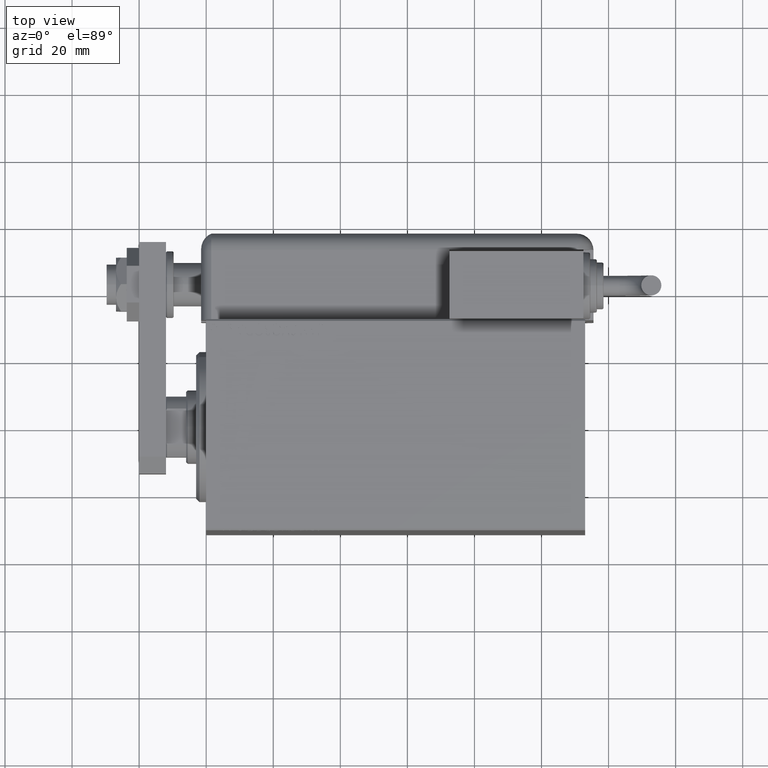
[diagram: clean part render]
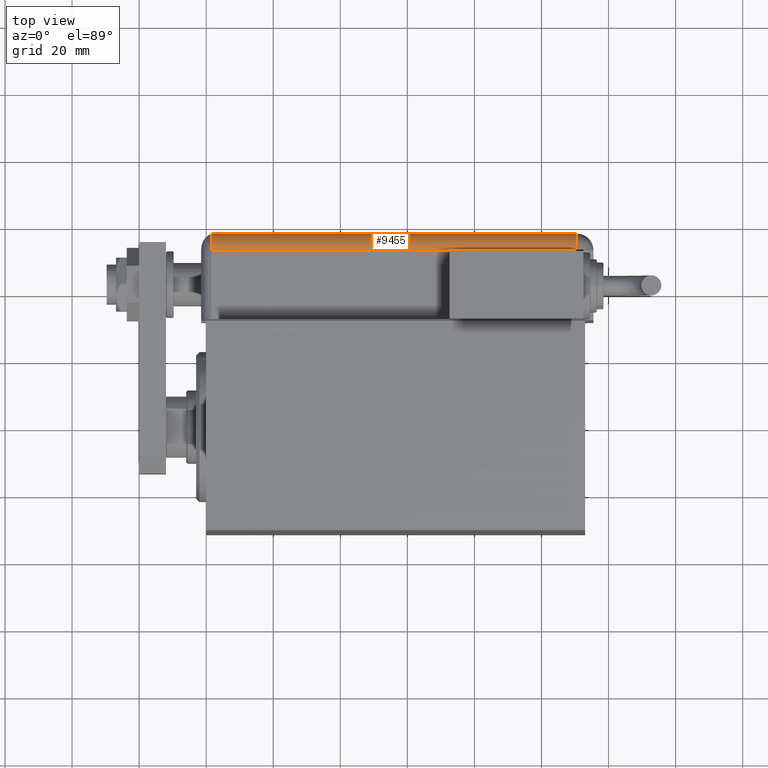
[diagram: same view with one face highlighted and labeled with its STEP entity id]
A machine part, top view. The second image highlights one B-rep face of the part: STEP entity #9455.
In plain terms, the highlighted cylindrical surface (edge-blend (fillet) strip) has radius 5 mm, axis along (1, -0, -0).
Its self-contained STEP definition (entity closure, byte-faithful):
#771 = VERTEX_POINT ( 'NONE', #23896 ) ;
#2701 = EDGE_CURVE ( 'NONE', #771, #38073, #15548, .T. ) ;
#2752 = CARTESIAN_POINT ( 'NONE',  ( 24.00000000000000000, 20.79999999999998650, 43.00000000000000000 ) ) ;
#5073 = DIRECTION ( 'NONE',  ( -0.000000000000000000, -0.000000000000000000, 1.000000000000000000 ) ) ;
#6034 = EDGE_LOOP ( 'NONE', ( #35742, #48286, #18994, #29611, #32164, #21653 ) ) ;
#7792 = DIRECTION ( 'NONE',  ( -0.000000000000000000, -0.000000000000000000, 1.000000000000000000 ) ) ;
#8860 = LINE ( 'NONE', #17342, #48148 ) ;
#9455 = ADVANCED_FACE ( 'NONE', ( #15346 ), #19869, .T. ) ;
#9619 = DIRECTION ( 'NONE',  ( -1.000000000000000000, 0.000000000000000000, 0.000000000000000000 ) ) ;
#10810 = DIRECTION ( 'NONE',  ( 0.000000000000000000, 0.000000000000000000, -1.000000000000000000 ) ) ;
#12140 = AXIS2_PLACEMENT_3D ( 'NONE', #39823, #7792, #34993 ) ;
#12632 = CIRCLE ( 'NONE', #20352, 5.000000000000000888 ) ;
#15346 = FACE_OUTER_BOUND ( 'NONE', #6034, .T. ) ;
#15548 = LINE ( 'NONE', #33084, #29345 ) ;
#16661 = DIRECTION ( 'NONE',  ( -0.000000000000000000, 0.000000000000000000, -1.000000000000000000 ) ) ;
#17342 = CARTESIAN_POINT ( 'NONE',  ( 28.99999999999999645, 20.79999999999998650, 114.0000000000000000 ) ) ;
#18293 = VERTEX_POINT ( 'NONE', #26246 ) ;
#18973 = CARTESIAN_POINT ( 'NONE',  ( 24.00000000000000000, 20.79999999999998650, 114.0000000000000000 ) ) ;
#18994 = ORIENTED_EDGE ( 'NONE', *, *, #41911, .T. ) ;
#19869 = CYLINDRICAL_SURFACE ( 'NONE', #56343, 5.000000000000000888 ) ;
#20352 = AXIS2_PLACEMENT_3D ( 'NONE', #34461, #52891, #43228 ) ;
#21653 = ORIENTED_EDGE ( 'NONE', *, *, #26448, .F. ) ;
#22761 = DIRECTION ( 'NONE',  ( -0.000000000000000000, -0.000000000000000000, 1.000000000000000000 ) ) ;
#23896 = CARTESIAN_POINT ( 'NONE',  ( 24.00000000000000000, 25.79999999999998295, 114.0000000000000000 ) ) ;
#26246 = CARTESIAN_POINT ( 'NONE',  ( 28.99999999999999645, 20.79999999999998650, 43.00000000000000000 ) ) ;
#26448 = EDGE_CURVE ( 'NONE', #18293, #40623, #8860, .T. ) ;
#26789 = CIRCLE ( 'NONE', #43225, 5.000000000000000888 ) ;
#27745 = LINE ( 'NONE', #42234, #35085 ) ;
#28227 = CARTESIAN_POINT ( 'NONE',  ( 24.00000000000000000, 25.79999999999998295, 5.000000000000004441 ) ) ;
#29345 = VECTOR ( 'NONE', #33378, 1000.000000000000000 ) ;
#29611 = ORIENTED_EDGE ( 'NONE', *, *, #2701, .F. ) ;
#31417 = CIRCLE ( 'NONE', #12140, 5.000000000000000888 ) ;
#32164 = ORIENTED_EDGE ( 'NONE', *, *, #59336, .F. ) ;
#33084 = CARTESIAN_POINT ( 'NONE',  ( 24.00000000000000000, 25.79999999999998295, 114.0000000000000000 ) ) ;
#33378 = DIRECTION ( 'NONE',  ( 0.000000000000000000, 0.000000000000000000, -1.000000000000000000 ) ) ;
#34461 = CARTESIAN_POINT ( 'NONE',  ( 24.00000000000000000, 20.79999999999998650, 114.0000000000000000 ) ) ;
#34993 = DIRECTION ( 'NONE',  ( -1.000000000000000000, 0.000000000000000000, 0.000000000000000000 ) ) ;
#35085 = VECTOR ( 'NONE', #5073, 1000.000000000000000 ) ;
#35742 = ORIENTED_EDGE ( 'NONE', *, *, #51397, .F. ) ;
#36479 = EDGE_CURVE ( 'NONE', #44405, #56655, #27745, .T. ) ;
#38073 = VERTEX_POINT ( 'NONE', #28227 ) ;
#39627 = DIRECTION ( 'NONE',  ( 1.000000000000000000, -3.261280134836396706E-14, 0.000000000000000000 ) ) ;
#39823 = CARTESIAN_POINT ( 'NONE',  ( 24.00000000000000000, 20.79999999999998650, 5.000000000000004441 ) ) ;
#40623 = VERTEX_POINT ( 'NONE', #42923 ) ;
#41911 = EDGE_CURVE ( 'NONE', #44405, #38073, #31417, .T. ) ;
#42234 = CARTESIAN_POINT ( 'NONE',  ( 28.99599839871871865, 20.99999999999998224, 114.0000000000000000 ) ) ;
#42923 = CARTESIAN_POINT ( 'NONE',  ( 28.99999999999999645, 20.79999999999998650, 114.0000000000000000 ) ) ;
#43225 = AXIS2_PLACEMENT_3D ( 'NONE', #2752, #16661, #39627 ) ;
#43228 = DIRECTION ( 'NONE',  ( -1.000000000000000000, 0.000000000000000000, 0.000000000000000000 ) ) ;
#44405 = VERTEX_POINT ( 'NONE', #45573 ) ;
#45573 = CARTESIAN_POINT ( 'NONE',  ( 28.99599839871871865, 21.00000000000000000, 5.000000000000004441 ) ) ;
#46682 = CARTESIAN_POINT ( 'NONE',  ( 28.99599839871871865, 20.99999999999999289, 43.00000000000000000 ) ) ;
#48148 = VECTOR ( 'NONE', #22761, 1000.000000000000000 ) ;
#48286 = ORIENTED_EDGE ( 'NONE', *, *, #36479, .F. ) ;
#51397 = EDGE_CURVE ( 'NONE', #56655, #18293, #26789, .T. ) ;
#52891 = DIRECTION ( 'NONE',  ( -0.000000000000000000, -0.000000000000000000, 1.000000000000000000 ) ) ;
#56343 = AXIS2_PLACEMENT_3D ( 'NONE', #18973, #10810, #9619 ) ;
#56655 = VERTEX_POINT ( 'NONE', #46682 ) ;
#59336 = EDGE_CURVE ( 'NONE', #40623, #771, #12632, .T. ) ;